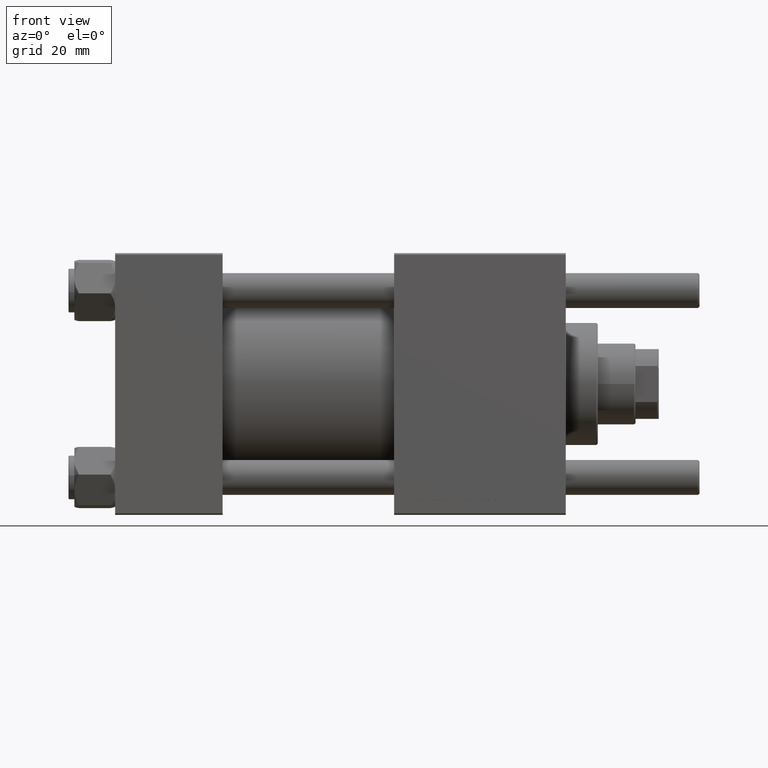
[diagram: clean part render]
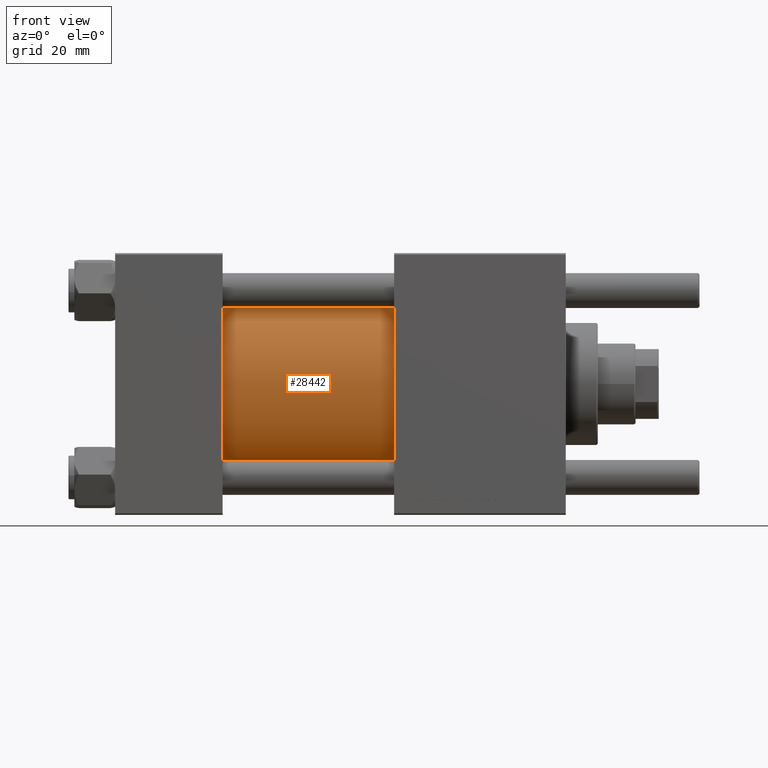
[diagram: same view with one face highlighted and labeled with its STEP entity id]
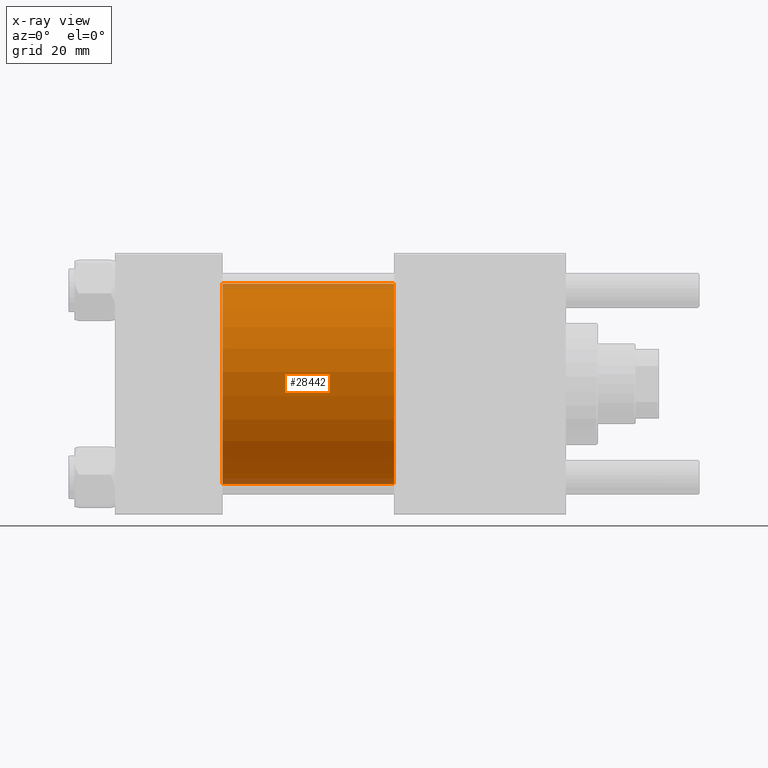
[diagram: x-ray of the same camera — body ghosted, the highlighted face saturated]
A machine part, front view. The second image highlights one B-rep face of the part: STEP entity #28442.
The next image is the same camera in x-ray: the body ghosted, the highlighted face saturated — about 5% of this face is hidden behind the body in this view.
In plain terms, the highlighted cylindrical surface (partial cylindrical patch) has radius 34.5 mm, axis along (-1, -0, -0).
Its self-contained STEP definition (entity closure, byte-faithful):
#255 = VERTEX_POINT ( 'NONE', #3972 ) ;
#1786 = CARTESIAN_POINT ( 'NONE',  ( 37.00000000000000000, -2.602085213965210642E-15, 34.50000000000000000 ) ) ;
#3551 = DIRECTION ( 'NONE',  ( 0.000000000000000000, 0.000000000000000000, 1.000000000000000000 ) ) ;
#3972 = CARTESIAN_POINT ( 'NONE',  ( 96.00000000000000000, 1.622946243093158675E-15, -34.50000000000000000 ) ) ;
#4992 = CIRCLE ( 'NONE', #37050, 34.50000000000000000 ) ;
#6102 = VERTEX_POINT ( 'NONE', #1786 ) ;
#6982 = DIRECTION ( 'NONE',  ( 0.000000000000000000, 0.000000000000000000, 1.000000000000000000 ) ) ;
#8151 = EDGE_LOOP ( 'NONE', ( #13151, #14554, #24645, #22691 ) ) ;
#9913 = VECTOR ( 'NONE', #12200, 1000.000000000000000 ) ;
#11288 = CARTESIAN_POINT ( 'NONE',  ( 37.00000000000000000, -2.602085213965210642E-15, 0.000000000000000000 ) ) ;
#12143 = DIRECTION ( 'NONE',  ( 1.000000000000000000, -0.000000000000000000, 0.000000000000000000 ) ) ;
#12200 = DIRECTION ( 'NONE',  ( -1.000000000000000000, -0.000000000000000000, -0.000000000000000000 ) ) ;
#12736 = CYLINDRICAL_SURFACE ( 'NONE', #30271, 34.50000000000000000 ) ;
#12904 = EDGE_CURVE ( 'NONE', #26694, #255, #21652, .T. ) ;
#13151 = ORIENTED_EDGE ( 'NONE', *, *, #53299, .F. ) ;
#13976 = CARTESIAN_POINT ( 'NONE',  ( 96.00000000000000000, -2.602085213965210642E-15, 0.000000000000000000 ) ) ;
#14268 = DIRECTION ( 'NONE',  ( 0.000000000000000000, 0.000000000000000000, -1.000000000000000000 ) ) ;
#14554 = ORIENTED_EDGE ( 'NONE', *, *, #12904, .F. ) ;
#14705 = DIRECTION ( 'NONE',  ( -1.000000000000000000, -0.000000000000000000, -0.000000000000000000 ) ) ;
#18871 = CARTESIAN_POINT ( 'NONE',  ( 37.00000000000000000, 1.622946243093158675E-15, -34.50000000000000000 ) ) ;
#19723 = VERTEX_POINT ( 'NONE', #18871 ) ;
#20493 = CARTESIAN_POINT ( 'NONE',  ( 96.00000000000000000, -2.602085213965210642E-15, 0.000000000000000000 ) ) ;
#21652 = CIRCLE ( 'NONE', #50033, 34.50000000000000000 ) ;
#22691 = ORIENTED_EDGE ( 'NONE', *, *, #47068, .T. ) ;
#22720 = CARTESIAN_POINT ( 'NONE',  ( 96.00000000000000000, 1.622946243093158675E-15, -34.50000000000000000 ) ) ;
#24645 = ORIENTED_EDGE ( 'NONE', *, *, #56473, .T. ) ;
#26694 = VERTEX_POINT ( 'NONE', #50386 ) ;
#28442 = ADVANCED_FACE ( 'NONE', ( #51187 ), #12736, .T. ) ;
#30271 = AXIS2_PLACEMENT_3D ( 'NONE', #20493, #33964, #3551 ) ;
#30865 = VECTOR ( 'NONE', #14705, 1000.000000000000000 ) ;
#33964 = DIRECTION ( 'NONE',  ( -1.000000000000000000, -0.000000000000000000, -0.000000000000000000 ) ) ;
#33986 = LINE ( 'NONE', #47452, #9913 ) ;
#37050 = AXIS2_PLACEMENT_3D ( 'NONE', #11288, #12143, #6982 ) ;
#40503 = LINE ( 'NONE', #22720, #30865 ) ;
#47068 = EDGE_CURVE ( 'NONE', #6102, #19723, #4992, .T. ) ;
#47452 = CARTESIAN_POINT ( 'NONE',  ( 96.00000000000000000, -2.602085213965210642E-15, 34.50000000000000000 ) ) ;
#50033 = AXIS2_PLACEMENT_3D ( 'NONE', #13976, #53542, #14268 ) ;
#50386 = CARTESIAN_POINT ( 'NONE',  ( 96.00000000000000000, -2.602085213965210642E-15, 34.50000000000000000 ) ) ;
#51187 = FACE_OUTER_BOUND ( 'NONE', #8151, .T. ) ;
#53299 = EDGE_CURVE ( 'NONE', #255, #19723, #40503, .T. ) ;
#53542 = DIRECTION ( 'NONE',  ( 1.000000000000000000, 0.000000000000000000, 0.000000000000000000 ) ) ;
#56473 = EDGE_CURVE ( 'NONE', #26694, #6102, #33986, .T. ) ;